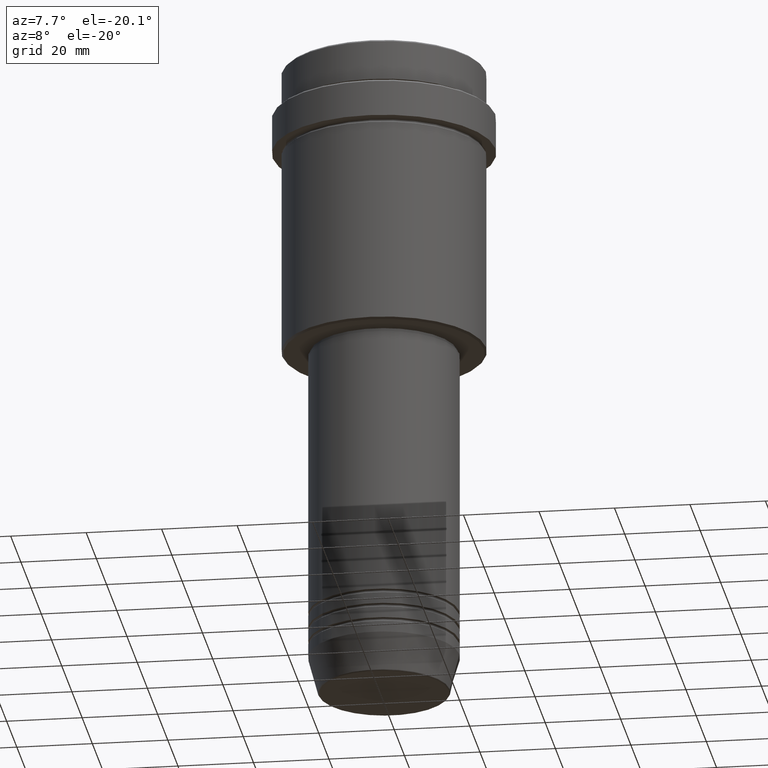
[diagram: clean part render]
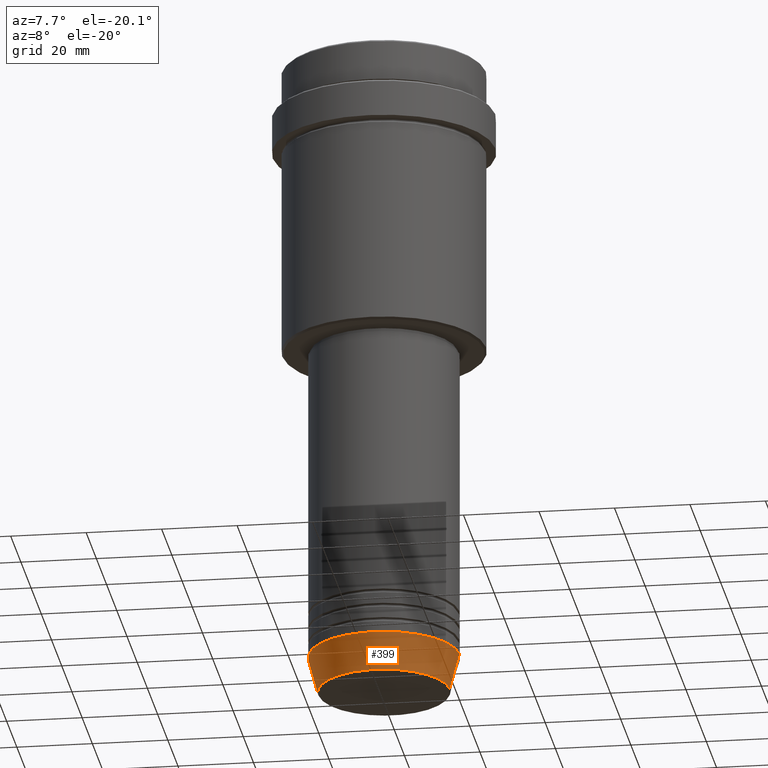
[diagram: same view with one face highlighted and labeled with its STEP entity id]
A machine part, auxiliary view. The second image highlights one B-rep face of the part: STEP entity #399.
In plain terms, the highlighted conical surface has half-angle 15 deg.
Its self-contained STEP definition (entity closure, byte-faithful):
#2 = LINE ( 'NONE', #313, #1149 ) ;
#49 = AXIS2_PLACEMENT_3D ( 'NONE', #92, #764, #528 ) ;
#92 = CARTESIAN_POINT ( 'NONE',  ( 0.000000000000000000, 0.000000000000000000, -172.6294095225512422 ) ) ;
#97 = AXIS2_PLACEMENT_3D ( 'NONE', #173, #382, #933 ) ;
#119 = VECTOR ( 'NONE', #417, 1000.000000000000114 ) ;
#122 = EDGE_CURVE ( 'NONE', #927, #858, #327, .T. ) ;
#125 = EDGE_CURVE ( 'NONE', #1269, #927, #575, .T. ) ;
#173 = CARTESIAN_POINT ( 'NONE',  ( 0.000000000000000000, 0.000000000000000000, -162.9999999999999716 ) ) ;
#245 = ORIENTED_EDGE ( 'NONE', *, *, #122, .T. ) ;
#313 = CARTESIAN_POINT ( 'NONE',  ( -20.00000000000000000, 2.449293598294706513E-15, -162.9999999999999716 ) ) ;
#327 = LINE ( 'NONE', #1076, #119 ) ;
#382 = DIRECTION ( 'NONE',  ( -0.000000000000000000, -0.000000000000000000, 1.000000000000000000 ) ) ;
#399 = ADVANCED_FACE ( 'NONE', ( #714 ), #710, .T. ) ;
#417 = DIRECTION ( 'NONE',  ( 0.2588190451025211836, 0.000000000000000000, 0.9659258262890680902 ) ) ;
#528 = DIRECTION ( 'NONE',  ( 1.000000000000000000, 0.000000000000000000, 0.000000000000000000 ) ) ;
#563 = EDGE_CURVE ( 'NONE', #1269, #1160, #2, .T. ) ;
#575 = CIRCLE ( 'NONE', #49, 17.41980749484382329 ) ;
#612 = EDGE_LOOP ( 'NONE', ( #1042, #1372, #245, #839 ) ) ;
#687 = AXIS2_PLACEMENT_3D ( 'NONE', #722, #1159, #728 ) ;
#710 = CONICAL_SURFACE ( 'NONE', #687, 20.00000000000000000, 0.2617993877991499074 ) ;
#714 = FACE_OUTER_BOUND ( 'NONE', #612, .T. ) ;
#722 = CARTESIAN_POINT ( 'NONE',  ( 0.000000000000000000, 0.000000000000000000, -162.9999999999999716 ) ) ;
#728 = DIRECTION ( 'NONE',  ( 1.000000000000000000, 0.000000000000000000, 0.000000000000000000 ) ) ;
#764 = DIRECTION ( 'NONE',  ( -0.000000000000000000, -0.000000000000000000, 1.000000000000000000 ) ) ;
#839 = ORIENTED_EDGE ( 'NONE', *, *, #1254, .F. ) ;
#858 = VERTEX_POINT ( 'NONE', #1277 ) ;
#896 = CIRCLE ( 'NONE', #97, 20.00000000000000000 ) ;
#927 = VERTEX_POINT ( 'NONE', #974 ) ;
#933 = DIRECTION ( 'NONE',  ( 1.000000000000000000, 0.000000000000000000, 0.000000000000000000 ) ) ;
#974 = CARTESIAN_POINT ( 'NONE',  ( 17.41980749484382329, 0.000000000000000000, -172.6294095225512422 ) ) ;
#1042 = ORIENTED_EDGE ( 'NONE', *, *, #563, .F. ) ;
#1076 = CARTESIAN_POINT ( 'NONE',  ( 20.00000000000000000, 0.000000000000000000, -162.9999999999999716 ) ) ;
#1149 = VECTOR ( 'NONE', #1316, 1000.000000000000114 ) ;
#1157 = CARTESIAN_POINT ( 'NONE',  ( -17.41980749484382329, 2.291302373663531915E-15, -172.6294095225512422 ) ) ;
#1159 = DIRECTION ( 'NONE',  ( -0.000000000000000000, -0.000000000000000000, 1.000000000000000000 ) ) ;
#1160 = VERTEX_POINT ( 'NONE', #1226 ) ;
#1226 = CARTESIAN_POINT ( 'NONE',  ( -20.00000000000000000, 2.449293598294706513E-15, -162.9999999999999716 ) ) ;
#1254 = EDGE_CURVE ( 'NONE', #1160, #858, #896, .T. ) ;
#1269 = VERTEX_POINT ( 'NONE', #1157 ) ;
#1277 = CARTESIAN_POINT ( 'NONE',  ( 20.00000000000000000, 0.000000000000000000, -162.9999999999999716 ) ) ;
#1316 = DIRECTION ( 'NONE',  ( -0.2588190451025211836, 3.169619151431770488E-17, 0.9659258262890680902 ) ) ;
#1372 = ORIENTED_EDGE ( 'NONE', *, *, #125, .T. ) ;